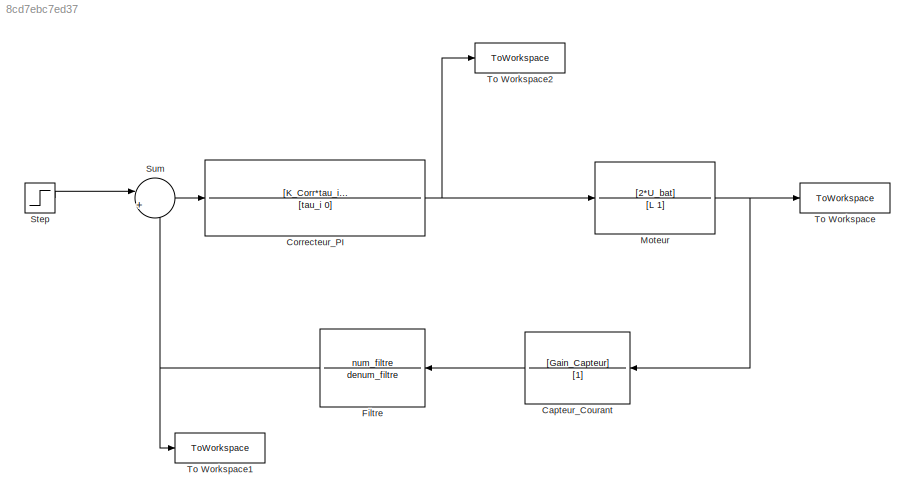
MODEL slx_8cd7ebc7ed37
KIND model
CONFIG AbsTol = auto
CONFIG EnableMultiTasking = off
CONFIG FixedStep = auto
CONFIG MaxStep = auto
CONFIG MinStep = auto
CONFIG RelTol = 1e-3
CONFIG SampleTimeConstraint = Unconstrained
CONFIG SolverName = VariableStepAuto
CONFIG StartTime = 0.0
CONFIG StopTime = 1.2
BLOCK [TransferFcn] Capteur_Courant
  Denominator = [1]
  NameLocation = top
  Numerator = [Gain_Capteur]
BLOCK [TransferFcn] Correcteur_PI
  Denominator = [tau_i 0]
  Numerator = [K_Corr*tau_i 1]
BLOCK [TransferFcn] Filtre
  Denominator = denum_filtre
  NameLocation = top
  Numerator = num_filtre
BLOCK [TransferFcn] Moteur
  Denominator = [L 1]
  Numerator = [2*U_bat]
BLOCK [Step] Step
  After = 3.3
  SampleTime = 0
BLOCK [Sum] Sum
  Inputs = |+-
BLOCK [ToWorkspace] To Workspace
  FixptAsFi = on
  MaxDataPoints = inf
  SampleTime = -1
  SaveFormat = Timeseries
  VariableName = simout
BLOCK [ToWorkspace] To Workspace1
  FixptAsFi = on
  MaxDataPoints = inf
  SampleTime = -1
  SaveFormat = Timeseries
  VariableName = retour
BLOCK [ToWorkspace] To Workspace2
  FixptAsFi = on
  MaxDataPoints = inf
  SampleTime = -1
  SaveFormat = Timeseries
  VariableName = correcteur
LINE Capteur_Courant:1 -> Filtre:1
NET Correcteur_PI:1 -> Moteur:1, To Workspace2:1
NET Filtre:1 -> Sum:2, To Workspace1:1
NET Moteur:1 -> Capteur_Courant:1, To Workspace:1
LINE Step:1 -> Sum:1
LINE Sum:1 -> Correcteur_PI:1
note: NET lines group one-source signal fan-out (src -> all destinations, sorted); 1:1 wires keep LINE
